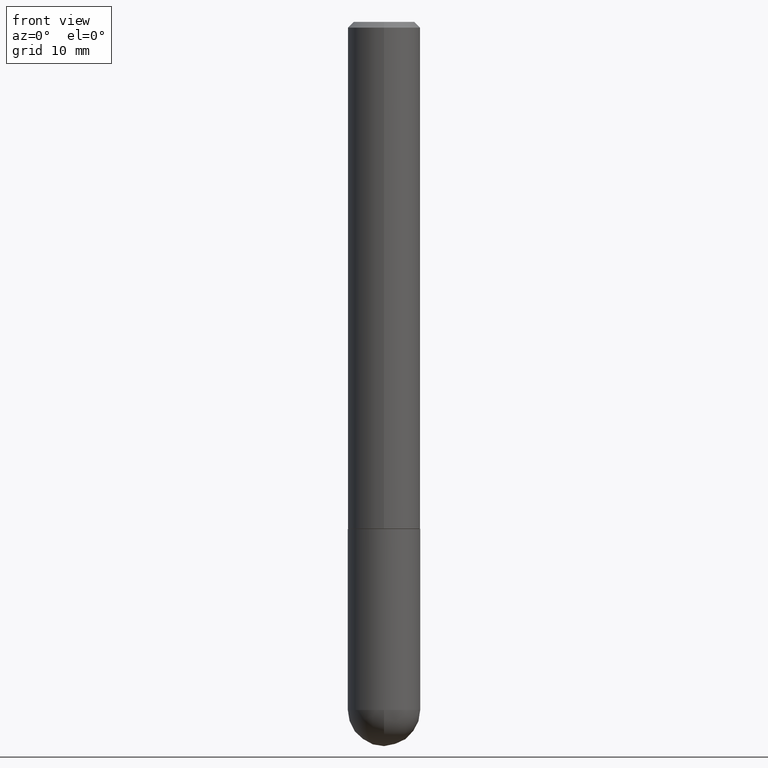
[diagram: clean part render]
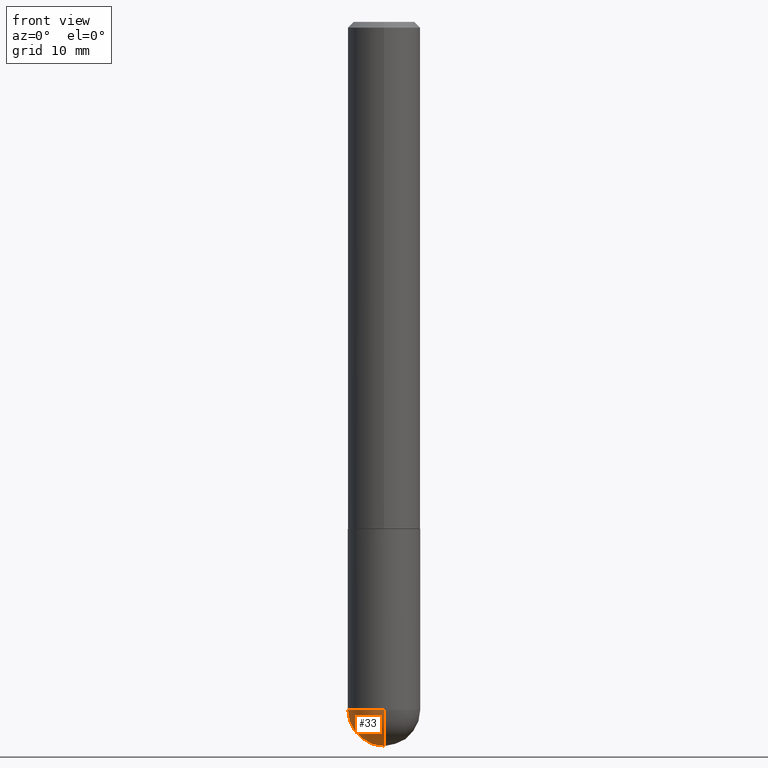
[diagram: same view with one face highlighted and labeled with its STEP entity id]
A machine part, front view. The second image highlights one B-rep face of the part: STEP entity #33.
In plain terms, the highlighted spherical surface has radius 3.175 mm.
Its self-contained STEP definition (entity closure, byte-faithful):
#4 = DIRECTION ( 'NONE',  ( -2.445468806185136597E-29, 3.491481338843145583E-15, 1.000000000000000000 ) ) ;
#15 = AXIS2_PLACEMENT_3D ( 'NONE', #176, #330, #267 ) ;
#23 = ORIENTED_EDGE ( 'NONE', *, *, #182, .T. ) ;
#33 = ADVANCED_FACE ( 'NONE', ( #295 ), #412, .T. ) ;
#43 = CARTESIAN_POINT ( 'NONE',  ( 5.807988414689700538E-29, -8.292268179752471696E-15, -2.375000000000000000 ) ) ;
#44 = DIRECTION ( 'NONE',  ( 6.982962677686265133E-15, 1.000000000000000000, 0.000000000000000000 ) ) ;
#46 = AXIS2_PLACEMENT_3D ( 'NONE', #173, #136, #44 ) ;
#52 = AXIS2_PLACEMENT_3D ( 'NONE', #131, #263, #227 ) ;
#53 = ORIENTED_EDGE ( 'NONE', *, *, #135, .F. ) ;
#58 = VERTEX_POINT ( 'NONE', #72 ) ;
#63 = CIRCLE ( 'NONE', #15, 0.1250000000000001943 ) ;
#65 = CARTESIAN_POINT ( 'NONE',  ( 5.807988414689700538E-29, -8.292268179752471696E-15, -2.375000000000000000 ) ) ;
#72 = CARTESIAN_POINT ( 'NONE',  ( -8.881784197000694204E-16, -0.1250000000000086320, -2.374999999999999556 ) ) ;
#84 = VERTEX_POINT ( 'NONE', #200 ) ;
#105 = EDGE_CURVE ( 'NONE', #84, #58, #333, .T. ) ;
#110 = DIRECTION ( 'NONE',  ( 1.000000000000000000, -6.982962677686270655E-15, 0.000000000000000000 ) ) ;
#122 = AXIS2_PLACEMENT_3D ( 'NONE', #43, #175, #110 ) ;
#131 = CARTESIAN_POINT ( 'NONE',  ( 5.476868636775814291E-29, -8.766450547892521992E-15, -2.375000000000000000 ) ) ;
#134 = DIRECTION ( 'NONE',  ( 1.000000000000000000, -6.982962677686270655E-15, 0.000000000000000000 ) ) ;
#135 = EDGE_CURVE ( 'NONE', #373, #84, #255, .T. ) ;
#136 = DIRECTION ( 'NONE',  ( 1.000000000000000000, -6.982962677686265922E-15, 4.883557194083112340E-29 ) ) ;
#144 = CARTESIAN_POINT ( 'NONE',  ( 8.728703347108403340E-16, 0.1249999999999915623, -2.375000000000000888 ) ) ;
#149 = ORIENTED_EDGE ( 'NONE', *, *, #178, .F. ) ;
#173 = CARTESIAN_POINT ( 'NONE',  ( 5.476868636775814291E-29, -8.766450547892521992E-15, -2.375000000000000000 ) ) ;
#175 = DIRECTION ( 'NONE',  ( -2.445468806185136597E-29, 3.491481338843145583E-15, 1.000000000000000000 ) ) ;
#176 = CARTESIAN_POINT ( 'NONE',  ( 5.476868636775814291E-29, -8.766450547892521992E-15, -2.375000000000000000 ) ) ;
#178 = EDGE_CURVE ( 'NONE', #190, #373, #361, .T. ) ;
#182 = EDGE_CURVE ( 'NONE', #190, #58, #63, .T. ) ;
#190 = VERTEX_POINT ( 'NONE', #303 ) ;
#200 = CARTESIAN_POINT ( 'NONE',  ( -0.1250000000000000000, -6.313001841663864134E-15, -2.375000000000000000 ) ) ;
#227 = DIRECTION ( 'NONE',  ( 6.982962677686265922E-15, 1.000000000000000000, -4.370956789862814839E-15 ) ) ;
#255 = CIRCLE ( 'NONE', #122, 0.1250000000000000000 ) ;
#263 = DIRECTION ( 'NONE',  ( -1.000000000000000000, 6.982962677686265922E-15, -4.883557194083112901E-29 ) ) ;
#267 = DIRECTION ( 'NONE',  ( -7.105427357601000281E-15, -1.000000000000000000, 0.000000000000000000 ) ) ;
#295 = FACE_OUTER_BOUND ( 'NONE', #397, .T. ) ;
#296 = AXIS2_PLACEMENT_3D ( 'NONE', #65, #4, #134 ) ;
#303 = CARTESIAN_POINT ( 'NONE',  ( 5.787897026856327965E-29, -9.195231672753244292E-15, -2.500000000000000444 ) ) ;
#330 = DIRECTION ( 'NONE',  ( -1.000000000000000000, 7.105427357601001070E-15, -4.926315508542082329E-29 ) ) ;
#333 = CIRCLE ( 'NONE', #296, 0.1250000000000000000 ) ;
#361 = CIRCLE ( 'NONE', #46, 0.1250000000000001943 ) ;
#373 = VERTEX_POINT ( 'NONE', #144 ) ;
#397 = EDGE_LOOP ( 'NONE', ( #149, #23, #403, #53 ) ) ;
#403 = ORIENTED_EDGE ( 'NONE', *, *, #105, .F. ) ;
#412 = SPHERICAL_SURFACE ( 'NONE', #52, 0.1250000000000001943 ) ;